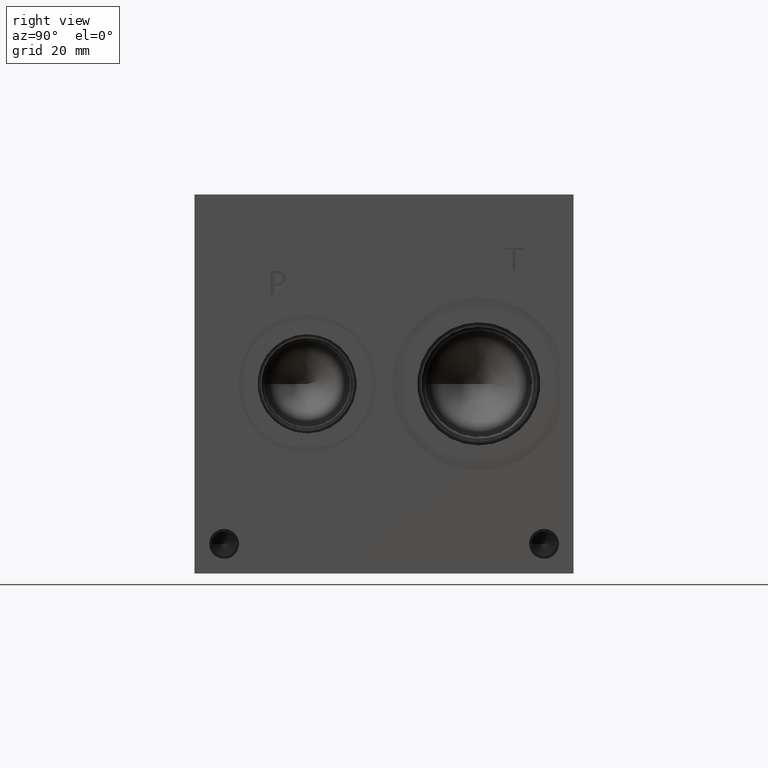
[diagram: clean part render]
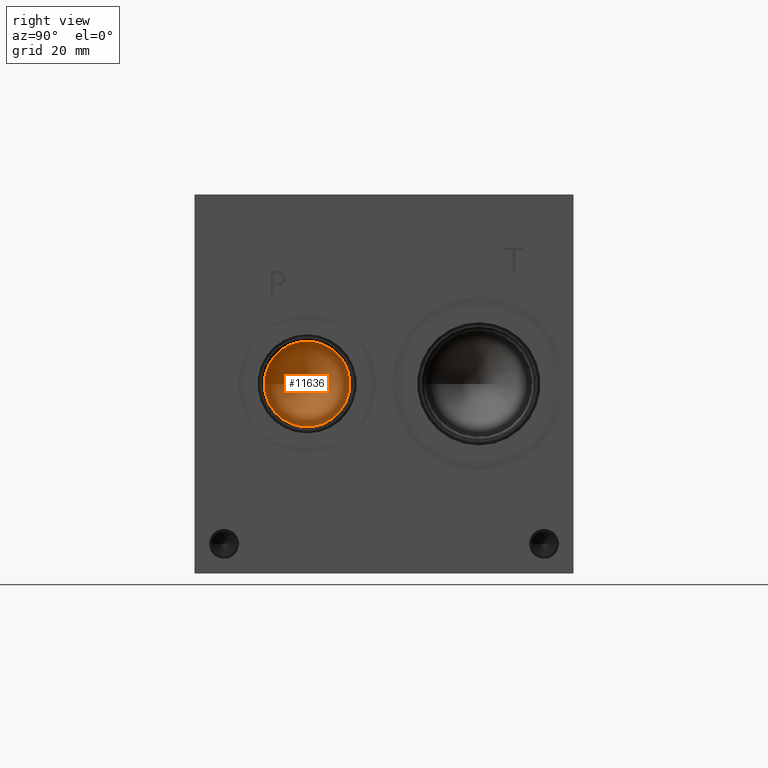
[diagram: same view with one face highlighted and labeled with its STEP entity id]
A machine part, right view. The second image highlights one B-rep face of the part: STEP entity #11636.
In plain terms, the highlighted conical surface has half-angle 60 deg.
Its self-contained STEP definition (entity closure, byte-faithful):
#24=CONICAL_SURFACE('',#12193,5.7531,1.0471975511966);
#355=CIRCLE('',#12194,11.5062);
#356=CIRCLE('',#12195,11.5062);
#1411=FACE_OUTER_BOUND('',#2077,.T.);
#2077=EDGE_LOOP('',(#9815,#9816,#9817,#9818));
#3211=LINE('',#19674,#4287);
#4287=VECTOR('',#14345,5.7531);
#5305=VERTEX_POINT('',#19670);
#5306=VERTEX_POINT('',#19671);
#5307=VERTEX_POINT('',#19673);
#6869=EDGE_CURVE('',#5305,#5306,#355,.T.);
#6870=EDGE_CURVE('',#5306,#5307,#3211,.T.);
#6871=EDGE_CURVE('',#5306,#5305,#356,.T.);
#9815=ORIENTED_EDGE('',*,*,#6869,.T.);
#9816=ORIENTED_EDGE('',*,*,#6870,.T.);
#9817=ORIENTED_EDGE('',*,*,#6870,.F.);
#9818=ORIENTED_EDGE('',*,*,#6871,.T.);
#11636=ADVANCED_FACE('',(#1411),#24,.F.);
#12193=AXIS2_PLACEMENT_3D('',#19669,#14341,#14342);
#12194=AXIS2_PLACEMENT_3D('',#19672,#14343,#14344);
#12195=AXIS2_PLACEMENT_3D('',#19675,#14346,#14347);
#14341=DIRECTION('center_axis',(1.,0.,0.));
#14342=DIRECTION('ref_axis',(0.,1.,0.));
#14343=DIRECTION('center_axis',(1.,0.,0.));
#14344=DIRECTION('ref_axis',(0.,1.,0.));
#14345=DIRECTION('',(-0.5,0.866025403784439,1.06057523872491E-16));
#14346=DIRECTION('center_axis',(1.,0.,0.));
#14347=DIRECTION('ref_axis',(0.,1.,0.));
#19669=CARTESIAN_POINT('Origin',(101.707446166325,30.1752,50.8));
#19670=CARTESIAN_POINT('',(105.029,41.6814,50.8));
#19671=CARTESIAN_POINT('',(105.029,18.669,50.8));
#19672=CARTESIAN_POINT('Origin',(105.029,30.1752,50.8));
#19673=CARTESIAN_POINT('',(98.3858923326503,30.1752,50.8));
#19674=CARTESIAN_POINT('',(101.707446166325,24.4221,50.8));
#19675=CARTESIAN_POINT('Origin',(105.029,30.1752,50.8));